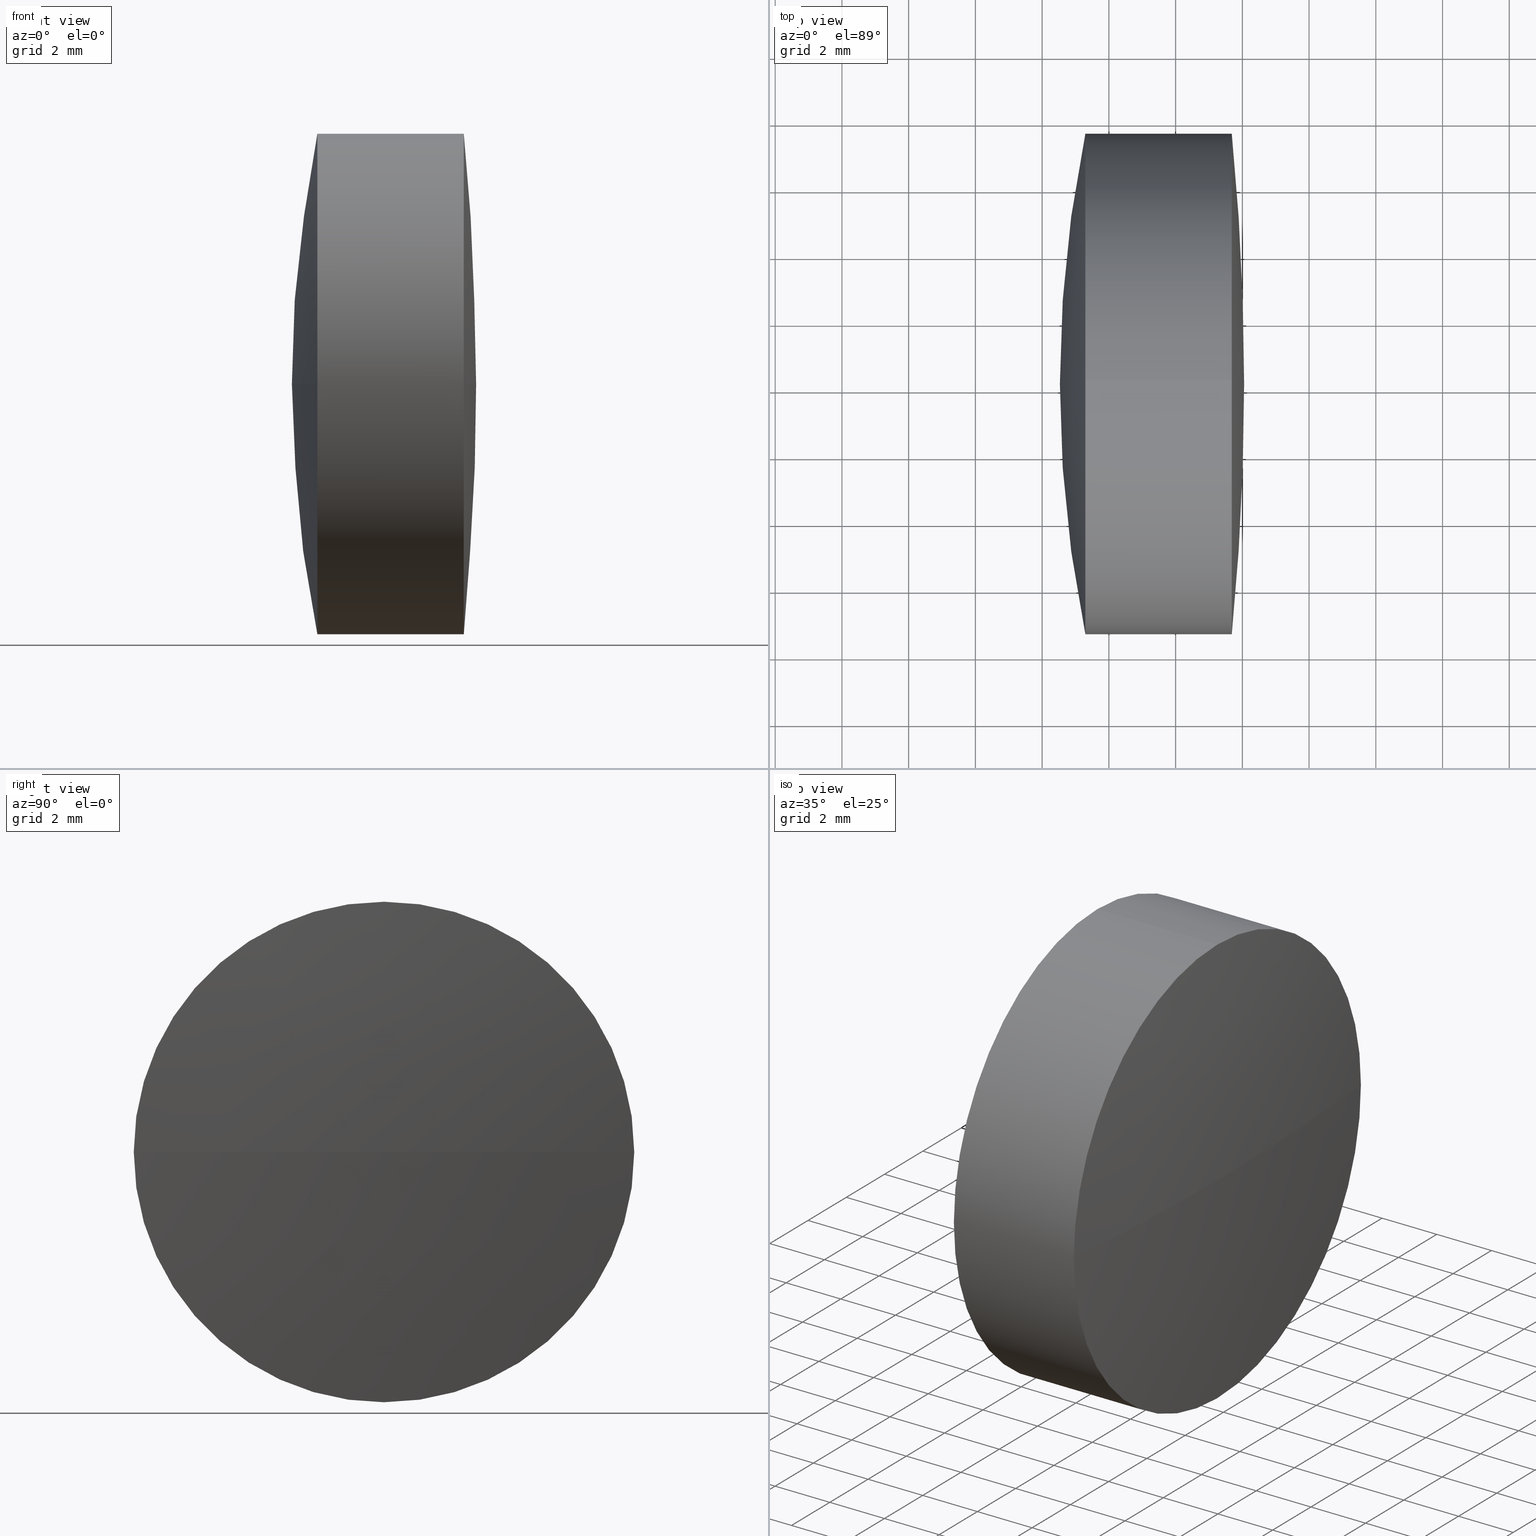
[diagram: canonical four-view strip — front | top / right | iso, engineering-drawing reading convention]
A machine part, canonical four-view strip (front | top / right | iso — engineering-drawing reading convention). The complete STEP part file that produces these views, byte-faithful:
ISO-10303-21;
HEADER;
FILE_DESCRIPTION (( 'STEP AP203' ),
    '1' );
FILE_NAME ('145287.STEP',
    '2024-05-13T02:11:52',
    ( '' ),
    ( '' ),
    'SwSTEP 2.0',
    'SolidWorks 2020',
    '' );
FILE_SCHEMA (( 'CONFIG_CONTROL_DESIGN' ));
ENDSEC;

DATA;
#1 = ORIENTED_EDGE ( 'NONE', *, *, #69, .T. ) ;
#2 = ADVANCED_FACE ( 'NONE', ( #95 ), #256, .T. ) ;
#3 = DIRECTION ( 'NONE',  ( 0.000000000000000000, 0.000000000000000000, 1.000000000000000000 ) ) ;
#4 = APPLICATION_CONTEXT ( 'configuration controlled 3d designs of mechanical parts and assemblies' ) ;
#5 = CIRCLE ( 'NONE', #161, 7.500000000000000000 ) ;
#6 = CARTESIAN_POINT ( 'NONE',  ( -88.70484587419444722, 10.13402828794794708, 0.000000000000000000 ) ) ;
#7 = ORIENTED_EDGE ( 'NONE', *, *, #255, .F. ) ;
#8 = CARTESIAN_POINT ( 'NONE',  ( -112.6581089760292969, 10.13402828794794708, 0.000000000000000000 ) ) ;
#9 = EDGE_LOOP ( 'NONE', ( #30, #177, #407, #374, #324, #420 ) ) ;
#10 = CARTESIAN_POINT ( 'NONE',  ( -88.70484587419444722, 2.634028287947922653, -9.184850993605179499E-16 ) ) ;
#11 = ORIENTED_EDGE ( 'NONE', *, *, #293, .T. ) ;
#12 = FACE_OUTER_BOUND ( 'NONE', #9, .T. ) ;
#13 = CARTESIAN_POINT ( 'NONE',  ( -87.04354085552412812, 17.63402828794796307, 0.000000000000000000 ) ) ;
#14 = MANIFOLD_SOLID_BREP ( '145287b-1-solid1', #347 ) ;
#15 = SPHERICAL_SURFACE ( 'NONE', #78, 76.35999999999999943 ) ;
#16 = MANIFOLD_SOLID_BREP ( '145287a-1-solid1', #167 ) ;
#17 = SPHERICAL_SURFACE ( 'NONE', #340, 76.35999999999999943 ) ;
#18 = DIRECTION ( 'NONE',  ( -1.000000000000000000, -0.000000000000000000, -0.000000000000000000 ) ) ;
#19 = DIRECTION ( 'NONE',  ( 0.000000000000000000, 1.000000000000000000, 0.000000000000000000 ) ) ;
#20 = CC_DESIGN_PERSON_AND_ORGANIZATION_ASSIGNMENT ( #193, #437, ( #379 ) ) ;
#21 = CARTESIAN_POINT ( 'NONE',  ( -88.70484587419444722, 10.13402828794794708, 7.500000000000000000 ) ) ;
#22 = APPROVAL_STATUS ( 'not_yet_approved' ) ;
#23 = SPHERICAL_SURFACE ( 'NONE', #137, 26.69000000000000128 ) ;
#24 =( NAMED_UNIT ( * ) SI_UNIT ( $, .STERADIAN. ) SOLID_ANGLE_UNIT ( ) );
#25 = CIRCLE ( 'NONE', #194, 7.500000000000000000 ) ;
#26 = PERSON_AND_ORGANIZATION ( #294, #237 ) ;
#27 = ADVANCED_FACE ( 'NONE', ( #370 ), #17, .T. ) ;
#28 = PERSON_AND_ORGANIZATION_ROLE ( 'classification_officer' ) ;
#29 = PERSON_AND_ORGANIZATION ( #294, #237 ) ;
#30 = ORIENTED_EDGE ( 'NONE', *, *, #339, .F. ) ;
#31 = AXIS2_PLACEMENT_3D ( 'NONE', #70, #211, #277 ) ;
#32 = CARTESIAN_POINT ( 'NONE',  ( -88.70484587419444722, 10.13402828794794708, 0.000000000000000000 ) ) ;
#33 = EDGE_CURVE ( 'NONE', #348, #56, #321, .T. ) ;
#34 = SPHERICAL_SURFACE ( 'NONE', #290, 37.22999999999999687 ) ;
#35 = AXIS2_PLACEMENT_3D ( 'NONE', #83, #42, #108 ) ;
#36 = DIRECTION ( 'NONE',  ( 0.000000000000000000, 1.000000000000000000, 0.000000000000000000 ) ) ;
#37 = EDGE_CURVE ( 'NONE', #44, #60, #206, .T. ) ;
#38 = ORIENTED_EDGE ( 'NONE', *, *, #400, .F. ) ;
#39 = FACE_OUTER_BOUND ( 'NONE', #443, .T. ) ;
#40 = VERTEX_POINT ( 'NONE', #10 ) ;
#41 = CIRCLE ( 'NONE', #297, 26.19000000000000483 ) ;
#42 = DIRECTION ( 'NONE',  ( -0.000000000000000000, 0.000000000000000000, 1.000000000000000000 ) ) ;
#43 = CARTESIAN_POINT ( 'NONE',  ( -112.6581089760292969, 10.13402828794794708, 0.000000000000000000 ) ) ;
#44 = VERTEX_POINT ( 'NONE', #251 ) ;
#45 = CARTESIAN_POINT ( 'NONE',  ( -84.31590303918355289, 10.13402828794794708, 7.500000000000000000 ) ) ;
#46 = SPHERICAL_SURFACE ( 'NONE', #63, 26.19000000000000483 ) ;
#47 = EDGE_CURVE ( 'NONE', #308, #301, #434, .T. ) ;
#48 = DIRECTION ( 'NONE',  ( 0.000000000000000000, 0.000000000000000000, -1.000000000000000000 ) ) ;
#49 = CIRCLE ( 'NONE', #228, 7.500000000000000000 ) ;
#50 = CARTESIAN_POINT ( 'NONE',  ( -87.04354085552412812, 10.13402828794794708, 0.000000000000000000 ) ) ;
#51 = DIRECTION ( 'NONE',  ( 1.000000000000000000, 0.000000000000000000, 0.000000000000000000 ) ) ;
#52 = EDGE_CURVE ( 'NONE', #352, #197, #414, .T. ) ;
#53 = DATE_AND_TIME ( #396, #192 ) ;
#54 = AXIS2_PLACEMENT_3D ( 'NONE', #125, #330, #159 ) ;
#55 = CALENDAR_DATE ( 2024, 13, 5 ) ;
#56 = VERTEX_POINT ( 'NONE', #13 ) ;
#57 = CC_DESIGN_DATE_AND_TIME_ASSIGNMENT ( #53, #199, ( #239 ) ) ;
#58 = APPLICATION_PROTOCOL_DEFINITION ( 'international standard', 'config_control_design', 1994, #74 ) ;
#59 = APPROVAL_PERSON_ORGANIZATION ( #89, #92, #398 ) ;
#60 = VERTEX_POINT ( 'NONE', #391 ) ;
#61 = PERSON_AND_ORGANIZATION_ROLE ( 'creator' ) ;
#62 = CYLINDRICAL_SURFACE ( 'NONE', #127, 7.500000000000000000 ) ;
#63 = AXIS2_PLACEMENT_3D ( 'NONE', #358, #48, #429 ) ;
#64 = EDGE_CURVE ( 'NONE', #308, #337, #399, .T. ) ;
#65 = ORIENTED_EDGE ( 'NONE', *, *, #436, .T. ) ;
#66 = LINE ( 'NONE', #341, #209 ) ;
#67 = CARTESIAN_POINT ( 'NONE',  ( -112.6581089760292969, 10.13402828794794708, 0.000000000000000000 ) ) ;
#68 = DIRECTION ( 'NONE',  ( -1.000000000000000000, -0.000000000000000000, -0.000000000000000000 ) ) ;
#69 = EDGE_CURVE ( 'NONE', #342, #56, #101, .T. ) ;
#70 = CARTESIAN_POINT ( 'NONE',  ( -87.04354085552412812, 10.13402828794794708, 0.000000000000000000 ) ) ;
#71 = ORIENTED_EDGE ( 'NONE', *, *, #293, .F. ) ;
#72 = CC_DESIGN_PERSON_AND_ORGANIZATION_ASSIGNMENT ( #338, #61, ( #254 ) ) ;
#73 = DIRECTION ( 'NONE',  ( -1.000000000000000000, -0.000000000000000000, -0.000000000000000000 ) ) ;
#74 = APPLICATION_CONTEXT ( 'configuration controlled 3d designs of mechanical parts and assemblies' ) ;
#75 = CC_DESIGN_APPROVAL ( #92, ( #254 ) ) ;
#76 = DIRECTION ( 'NONE',  ( 0.000000000000000000, 0.000000000000000000, 1.000000000000000000 ) ) ;
#77 = VERTEX_POINT ( 'NONE', #416 ) ;
#78 = AXIS2_PLACEMENT_3D ( 'NONE', #325, #395, #332 ) ;
#79 = SECURITY_CLASSIFICATION ( '', '', #129 ) ;
#80 = CARTESIAN_POINT ( 'NONE',  ( -87.04354085552412812, 10.13402828794794708, 0.000000000000000000 ) ) ;
#81 = CARTESIAN_POINT ( 'NONE',  ( -89.46810897602928492, 10.13402828794794708, 0.000000000000000000 ) ) ;
#82 = EDGE_CURVE ( 'NONE', #342, #113, #240, .T. ) ;
#83 = CARTESIAN_POINT ( 'NONE',  ( -52.23810897602929515, 10.13402828794794708, 0.000000000000000000 ) ) ;
#84 = CARTESIAN_POINT ( 'NONE',  ( -112.1366893227850738, 10.13402828794794708, 0.000000000000000000 ) ) ;
#85 = UNCERTAINTY_MEASURE_WITH_UNIT (LENGTH_MEASURE( 1.000000000000000082E-05 ), #176, 'distance_accuracy_value', 'NONE');
#86 = AXIS2_PLACEMENT_3D ( 'NONE', #186, #253, #326 ) ;
#87 = DIRECTION ( 'NONE',  ( -1.000000000000000000, -0.000000000000000000, -0.000000000000000000 ) ) ;
#88 = CC_DESIGN_PERSON_AND_ORGANIZATION_ASSIGNMENT ( #26, #28, ( #79 ) ) ;
#89 = PERSON_AND_ORGANIZATION ( #294, #237 ) ;
#90 = PERSON_AND_ORGANIZATION ( #294, #237 ) ;
#91 = AXIS2_PLACEMENT_3D ( 'NONE', #182, #149, #188 ) ;
#92 = APPROVAL ( #225, 'δָ��' ) ;
#93 = APPROVAL_ROLE ( '' ) ;
#94 = CIRCLE ( 'NONE', #421, 26.19000000000000483 ) ;
#95 = FACE_OUTER_BOUND ( 'NONE', #402, .T. ) ;
#96 = ORIENTED_EDGE ( 'NONE', *, *, #382, .F. ) ;
#97 = DIRECTION ( 'NONE',  ( 0.000000000000000000, 0.000000000000000000, 1.000000000000000000 ) ) ;
#98 = EDGE_CURVE ( 'NONE', #197, #207, #232, .T. ) ;
#99 = DIRECTION ( 'NONE',  ( 0.000000000000000000, 0.000000000000000000, 1.000000000000000000 ) ) ;
#100 = CARTESIAN_POINT ( 'NONE',  ( -87.04354085552412812, 10.13402828794794708, 0.000000000000000000 ) ) ;
#101 = CIRCLE ( 'NONE', #31, 7.500000000000000000 ) ;
#102 = EDGE_LOOP ( 'NONE', ( #276, #65, #288, #111 ) ) ;
#103 = DIRECTION ( 'NONE',  ( 0.000000000000000000, 0.000000000000000000, 1.000000000000000000 ) ) ;
#104 = AXIS2_PLACEMENT_3D ( 'NONE', #178, #319, #3 ) ;
#105 = ORIENTED_EDGE ( 'NONE', *, *, #106, .T. ) ;
#106 = EDGE_CURVE ( 'NONE', #40, #113, #154, .T. ) ;
#107 = DIRECTION ( 'NONE',  ( -0.000000000000000000, 0.000000000000000000, 1.000000000000000000 ) ) ;
#108 = DIRECTION ( 'NONE',  ( 1.000000000000000000, 0.000000000000000000, 0.000000000000000000 ) ) ;
#109 = ORIENTED_EDGE ( 'NONE', *, *, #180, .F. ) ;
#110 = CARTESIAN_POINT ( 'NONE',  ( -89.46810897602928492, 10.13402828794794708, 7.500000000000000000 ) ) ;
#111 = ORIENTED_EDGE ( 'NONE', *, *, #304, .T. ) ;
#112 = EDGE_CURVE ( 'NONE', #131, #352, #258, .T. ) ;
#113 = VERTEX_POINT ( 'NONE', #21 ) ;
#114 = EDGE_LOOP ( 'NONE', ( #216, #247, #175, #438, #134, #109 ) ) ;
#115 = DIRECTION ( 'NONE',  ( 0.000000000000000000, 1.000000000000000000, 1.224646799147353207E-16 ) ) ;
#116 = AXIS2_PLACEMENT_3D ( 'NONE', #8, #156, #295 ) ;
#117 = VERTEX_POINT ( 'NONE', #329 ) ;
#118 = VERTEX_POINT ( 'NONE', #432 ) ;
#119 = AXIS2_PLACEMENT_3D ( 'NONE', #67, #424, #115 ) ;
#120 = CARTESIAN_POINT ( 'NONE',  ( -87.04354085552412812, 10.13402828794794885, -7.500000000000000000 ) ) ;
#121 = DESIGN_CONTEXT ( 'detailed design', #74, 'design' ) ;
#122 = ADVANCED_FACE ( 'NONE', ( #390 ), #419, .T. ) ;
#123 = DIRECTION ( 'NONE',  ( 0.000000000000000000, 1.224646799147353207E-16, -1.000000000000000000 ) ) ;
#124 = CARTESIAN_POINT ( 'NONE',  ( -88.70484587419444722, 10.13402828794794708, 0.000000000000000000 ) ) ;
#125 = CARTESIAN_POINT ( 'NONE',  ( -52.23810897602929515, 10.13402828794794708, 0.000000000000000000 ) ) ;
#126 = DIRECTION ( 'NONE',  ( -1.000000000000000000, -0.000000000000000000, -0.000000000000000000 ) ) ;
#127 = AXIS2_PLACEMENT_3D ( 'NONE', #305, #373, #140 ) ;
#128 = PERSON_AND_ORGANIZATION ( #294, #237 ) ;
#129 = SECURITY_CLASSIFICATION_LEVEL ( 'unclassified' ) ;
#130 = DATE_AND_TIME ( #195, #213 ) ;
#131 = VERTEX_POINT ( 'NONE', #202 ) ;
#132 = EDGE_CURVE ( 'NONE', #413, #148, #278, .T. ) ;
#133 = APPROVAL_DATE_TIME ( #439, #378 ) ;
#134 = ORIENTED_EDGE ( 'NONE', *, *, #132, .F. ) ;
#135 = CARTESIAN_POINT ( 'NONE',  ( -85.96810897602928492, 10.13402828794794885, 0.000000000000000000 ) ) ;
#136 = ORIENTED_EDGE ( 'NONE', *, *, #304, .F. ) ;
#137 = AXIS2_PLACEMENT_3D ( 'NONE', #248, #427, #387 ) ;
#138 = EDGE_LOOP ( 'NONE', ( #214, #446, #11, #441 ) ) ;
#139 = FACE_OUTER_BOUND ( 'NONE', #320, .T. ) ;
#140 = DIRECTION ( 'NONE',  ( 0.000000000000000000, 0.000000000000000000, 1.000000000000000000 ) ) ;
#141 = APPROVAL_PERSON_ORGANIZATION ( #300, #165, #336 ) ;
#142 = ORIENTED_EDGE ( 'NONE', *, *, #359, .F. ) ;
#143 = CARTESIAN_POINT ( 'NONE',  ( -160.3066893227850755, 10.13402828794794708, 0.000000000000000000 ) ) ;
#144 = VECTOR ( 'NONE', #173, 1000.000000000000000 ) ;
#145 = FACE_OUTER_BOUND ( 'NONE', #267, .T. ) ;
#146 = EDGE_CURVE ( 'NONE', #118, #352, #394, .T. ) ;
#147 = DIRECTION ( 'NONE',  ( -1.000000000000000000, -0.000000000000000000, -0.000000000000000000 ) ) ;
#148 = VERTEX_POINT ( 'NONE', #351 ) ;
#149 = DIRECTION ( 'NONE',  ( -1.000000000000000000, -0.000000000000000000, -0.000000000000000000 ) ) ;
#150 = ORIENTED_EDGE ( 'NONE', *, *, #436, .F. ) ;
#151 = DIRECTION ( 'NONE',  ( -1.000000000000000000, -0.000000000000000000, -0.000000000000000000 ) ) ;
#152 = ADVANCED_FACE ( 'NONE', ( #145 ), #190, .T. ) ;
#153 = FACE_OUTER_BOUND ( 'NONE', #102, .T. ) ;
#154 = CIRCLE ( 'NONE', #425, 7.500000000000000000 ) ;
#155 = DIRECTION ( 'NONE',  ( -1.000000000000000000, -0.000000000000000000, -0.000000000000000000 ) ) ;
#156 = DIRECTION ( 'NONE',  ( -0.000000000000000000, 0.000000000000000000, 1.000000000000000000 ) ) ;
#157 = FACE_OUTER_BOUND ( 'NONE', #309, .T. ) ;
#158 = DIRECTION ( 'NONE',  ( -0.000000000000000000, 0.000000000000000000, -1.000000000000000000 ) ) ;
#159 = DIRECTION ( 'NONE',  ( 0.000000000000000000, 1.000000000000000000, 1.224646799147353207E-16 ) ) ;
#160 = CYLINDRICAL_SURFACE ( 'NONE', #174, 7.500000000000000000 ) ;
#161 = AXIS2_PLACEMENT_3D ( 'NONE', #392, #292, #223 ) ;
#162 = COORDINATED_UNIVERSAL_TIME_OFFSET ( 8, 0, .AHEAD. ) ;
#163 = AXIS2_PLACEMENT_3D ( 'NONE', #263, #97, #51 ) ;
#164 = ORIENTED_EDGE ( 'NONE', *, *, #82, .F. ) ;
#165 = APPROVAL ( #298, 'δָ��' ) ;
#166 = DATE_AND_TIME ( #262, #249 ) ;
#167 = CLOSED_SHELL ( 'NONE', ( #327, #274, #433, #152, #122, #266 ) ) ;
#168 = DIRECTION ( 'NONE',  ( -1.000000000000000000, -0.000000000000000000, -0.000000000000000000 ) ) ;
#169 = ORIENTED_EDGE ( 'NONE', *, *, #371, .F. ) ;
#170 = FACE_OUTER_BOUND ( 'NONE', #138, .T. ) ;
#171 = ORIENTED_EDGE ( 'NONE', *, *, #382, .T. ) ;
#172 = DIRECTION ( 'NONE',  ( -0.000000000000000000, 0.000000000000000000, -1.000000000000000000 ) ) ;
#173 = DIRECTION ( 'NONE',  ( -1.000000000000000000, -0.000000000000000000, -0.000000000000000000 ) ) ;
#174 = AXIS2_PLACEMENT_3D ( 'NONE', #81, #87, #189 ) ;
#175 = ORIENTED_EDGE ( 'NONE', *, *, #52, .T. ) ;
#176 =( LENGTH_UNIT ( ) NAMED_UNIT ( * ) SI_UNIT ( .MILLI., .METRE. ) );
#177 = ORIENTED_EDGE ( 'NONE', *, *, #224, .T. ) ;
#178 = CARTESIAN_POINT ( 'NONE',  ( -84.31590303918355289, 10.13402828794794708, 0.000000000000000000 ) ) ;
#179 = ORIENTED_EDGE ( 'NONE', *, *, #33, .F. ) ;
#180 = EDGE_CURVE ( 'NONE', #60, #413, #5, .T. ) ;
#181 = ORIENTED_EDGE ( 'NONE', *, *, #98, .F. ) ;
#182 = CARTESIAN_POINT ( 'NONE',  ( -85.94668932278507611, 10.13402828794794708, 0.000000000000000000 ) ) ;
#183 = ORIENTED_EDGE ( 'NONE', *, *, #353, .T. ) ;
#184 = ADVANCED_FACE ( 'NONE', ( #153 ), #46, .F. ) ;
#185 = CARTESIAN_POINT ( 'NONE',  ( -84.31590303918355289, 17.63402828794788491, 0.000000000000000000 ) ) ;
#186 = CARTESIAN_POINT ( 'NONE',  ( -84.31590303918355289, 10.13402828794794708, 0.000000000000000000 ) ) ;
#187 = DIRECTION ( 'NONE',  ( 1.000000000000000000, 0.000000000000000000, 0.000000000000000000 ) ) ;
#188 = DIRECTION ( 'NONE',  ( 0.000000000000000000, 0.000000000000000000, 1.000000000000000000 ) ) ;
#189 = DIRECTION ( 'NONE',  ( 0.000000000000000000, 0.000000000000000000, 1.000000000000000000 ) ) ;
#190 = SPHERICAL_SURFACE ( 'NONE', #409, 37.22999999999999687 ) ;
#191 = EDGE_CURVE ( 'NONE', #77, #44, #41, .T. ) ;
#192 = LOCAL_TIME ( 10, 11, 52.00000000000000000, #162 ) ;
#193 = PERSON_AND_ORGANIZATION ( #294, #237 ) ;
#194 = AXIS2_PLACEMENT_3D ( 'NONE', #80, #126, #257 ) ;
#195 = CALENDAR_DATE ( 2024, 13, 5 ) ;
#196 = EDGE_CURVE ( 'NONE', #56, #282, #215, .T. ) ;
#197 = VERTEX_POINT ( 'NONE', #45 ) ;
#198 = LOCAL_TIME ( 10, 11, 52.00000000000000000, #366 ) ;
#199 = DATE_TIME_ROLE ( 'creation_date' ) ;
#200 = DIRECTION ( 'NONE',  ( 0.000000000000000000, 0.000000000000000000, 1.000000000000000000 ) ) ;
#201 = AXIS2_PLACEMENT_3D ( 'NONE', #260, #123, #360 ) ;
#202 = CARTESIAN_POINT ( 'NONE',  ( -84.31590303918355289, 10.13402828794794885, -7.500000000000000000 ) ) ;
#203 = DIRECTION ( 'NONE',  ( 0.000000000000000000, 0.000000000000000000, 1.000000000000000000 ) ) ;
#204 = CARTESIAN_POINT ( 'NONE',  ( -52.23810897602929515, 10.13402828794794708, 0.000000000000000000 ) ) ;
#205 = CARTESIAN_POINT ( 'NONE',  ( -88.70484587419444722, 17.63402828794797017, 0.000000000000000000 ) ) ;
#206 = CIRCLE ( 'NONE', #311, 7.500000000000000000 ) ;
#207 = VERTEX_POINT ( 'NONE', #185 ) ;
#208 = DIRECTION ( 'NONE',  ( -1.000000000000000000, -0.000000000000000000, -0.000000000000000000 ) ) ;
#209 = VECTOR ( 'NONE', #68, 1000.000000000000000 ) ;
#210 = CC_DESIGN_PERSON_AND_ORGANIZATION_ASSIGNMENT ( #128, #369, ( #239 ) ) ;
#211 = DIRECTION ( 'NONE',  ( -1.000000000000000000, -0.000000000000000000, -0.000000000000000000 ) ) ;
#212 = DIRECTION ( 'NONE',  ( -0.000000000000000000, 0.000000000000000000, -1.000000000000000000 ) ) ;
#213 = LOCAL_TIME ( 10, 11, 52.00000000000000000, #401 ) ;
#214 = ORIENTED_EDGE ( 'NONE', *, *, #47, .T. ) ;
#215 = CIRCLE ( 'NONE', #246, 7.500000000000000000 ) ;
#216 = ORIENTED_EDGE ( 'NONE', *, *, #422, .F. ) ;
#217 = CIRCLE ( 'NONE', #316, 76.35999999999999943 ) ;
#218 = CARTESIAN_POINT ( 'NONE',  ( -160.3066893227850755, 10.13402828794794708, 0.000000000000000000 ) ) ;
#219 = CARTESIAN_POINT ( 'NONE',  ( -85.94668932278507611, 10.13402828794794708, 7.500000000000000000 ) ) ;
#220 = ORIENTED_EDGE ( 'NONE', *, *, #353, .F. ) ;
#221 = DIRECTION ( 'NONE',  ( 0.000000000000000000, 0.000000000000000000, 1.000000000000000000 ) ) ;
#222 = ADVANCED_BREP_SHAPE_REPRESENTATION ( '145287', ( #16, #14, #163 ), #397 ) ;
#223 = DIRECTION ( 'NONE',  ( 0.000000000000000000, 0.000000000000000000, 1.000000000000000000 ) ) ;
#224 = EDGE_CURVE ( 'NONE', #282, #117, #25, .T. ) ;
#225 = APPROVAL_STATUS ( 'not_yet_approved' ) ;
#226 = AXIS2_PLACEMENT_3D ( 'NONE', #43, #212, #408 ) ;
#227 = COORDINATED_UNIVERSAL_TIME_OFFSET ( 8, 0, .AHEAD. ) ;
#228 = AXIS2_PLACEMENT_3D ( 'NONE', #32, #275, #203 ) ;
#229 = CALENDAR_DATE ( 2024, 13, 5 ) ;
#230 = ORIENTED_EDGE ( 'NONE', *, *, #196, .T. ) ;
#231 = FACE_OUTER_BOUND ( 'NONE', #114, .T. ) ;
#232 = CIRCLE ( 'NONE', #365, 7.500000000000000000 ) ;
#233 = EDGE_LOOP ( 'NONE', ( #96, #357, #318, #38 ) ) ;
#234 = CIRCLE ( 'NONE', #299, 7.500000000000000000 ) ;
#235 = DIRECTION ( 'NONE',  ( 0.000000000000000000, 0.000000000000000000, -1.000000000000000000 ) ) ;
#236 = CARTESIAN_POINT ( 'NONE',  ( -87.04354085552412812, 10.13402828794794708, 7.500000000000000000 ) ) ;
#237 = ORGANIZATION ( 'δָ��', 'δָ��', '' ) ;
#238 = CARTESIAN_POINT ( 'NONE',  ( -89.46810897602929913, 10.13402828794794885, 0.000000000000000000 ) ) ;
#239 = PRODUCT_DEFINITION ( 'δ֪', '', #254, #121 ) ;
#240 = LINE ( 'NONE', #110, #144 ) ;
#241 = EDGE_LOOP ( 'NONE', ( #142, #367, #411, #220 ) ) ;
#242 = AXIS2_PLACEMENT_3D ( 'NONE', #442, #447, #200 ) ;
#243 = ORIENTED_EDGE ( 'NONE', *, *, #371, .T. ) ;
#244 = PRODUCT_RELATED_PRODUCT_CATEGORY ( 'detail', '', ( #379 ) ) ;
#245 = ORIENTED_EDGE ( 'NONE', *, *, #422, .T. ) ;
#246 = AXIS2_PLACEMENT_3D ( 'NONE', #50, #361, #221 ) ;
#247 = ORIENTED_EDGE ( 'NONE', *, *, #112, .T. ) ;
#248 = CARTESIAN_POINT ( 'NONE',  ( -112.6581089760292969, 10.13402828794794708, 0.000000000000000000 ) ) ;
#249 = LOCAL_TIME ( 10, 11, 52.00000000000000000, #302 ) ;
#250 = CIRCLE ( 'NONE', #119, 26.69000000000000483 ) ;
#251 = CARTESIAN_POINT ( 'NONE',  ( -87.04354085552412812, 17.63402828794793820, 0.000000000000000000 ) ) ;
#252 = LINE ( 'NONE', #219, #269 ) ;
#253 = DIRECTION ( 'NONE',  ( -1.000000000000000000, -0.000000000000000000, -0.000000000000000000 ) ) ;
#254 = PRODUCT_DEFINITION_FORMATION_WITH_SPECIFIED_SOURCE ( '�κ�', '', #379, .NOT_KNOWN. ) ;
#255 = EDGE_CURVE ( 'NONE', #197, #148, #252, .T. ) ;
#256 = CYLINDRICAL_SURFACE ( 'NONE', #91, 7.500000000000000000 ) ;
#257 = DIRECTION ( 'NONE',  ( 0.000000000000000000, 0.000000000000000000, 1.000000000000000000 ) ) ;
#258 = CIRCLE ( 'NONE', #354, 7.500000000000000000 ) ;
#259 = MECHANICAL_CONTEXT ( 'NONE', #4, 'mechanical' ) ;
#260 = CARTESIAN_POINT ( 'NONE',  ( -160.3066893227850755, 10.13402828794794708, 0.000000000000000000 ) ) ;
#261 = ADVANCED_FACE ( 'NONE', ( #389 ), #15, .T. ) ;
#262 = CALENDAR_DATE ( 2024, 13, 5 ) ;
#263 = CARTESIAN_POINT ( 'NONE',  ( 0.000000000000000000, 0.000000000000000000, 0.000000000000000000 ) ) ;
#264 = SHAPE_DEFINITION_REPRESENTATION ( #281, #222 ) ;
#265 = DIRECTION ( 'NONE',  ( -1.000000000000000000, -0.000000000000000000, -0.000000000000000000 ) ) ;
#266 = ADVANCED_FACE ( 'NONE', ( #12 ), #160, .T. ) ;
#267 = EDGE_LOOP ( 'NONE', ( #71, #105, #243, #284 ) ) ;
#268 = CARTESIAN_POINT ( 'NONE',  ( -88.70484587419444722, 10.13402828794794885, -7.500000000000000000 ) ) ;
#269 = VECTOR ( 'NONE', #363, 1000.000000000000000 ) ;
#270 = ORIENTED_EDGE ( 'NONE', *, *, #359, .T. ) ;
#271 = LOCAL_TIME ( 10, 11, 52.00000000000000000, #227 ) ;
#272 = CARTESIAN_POINT ( 'NONE',  ( -112.1366893227850738, 10.13402828794794708, 0.000000000000000000 ) ) ;
#273 = ORIENTED_EDGE ( 'NONE', *, *, #37, .T. ) ;
#274 = ADVANCED_FACE ( 'NONE', ( #157 ), #23, .T. ) ;
#275 = DIRECTION ( 'NONE',  ( -1.000000000000000000, -0.000000000000000000, -0.000000000000000000 ) ) ;
#276 = ORIENTED_EDGE ( 'NONE', *, *, #191, .F. ) ;
#277 = DIRECTION ( 'NONE',  ( 0.000000000000000000, 0.000000000000000000, 1.000000000000000000 ) ) ;
#278 = CIRCLE ( 'NONE', #287, 7.500000000000000000 ) ;
#279 = CC_DESIGN_PERSON_AND_ORGANIZATION_ASSIGNMENT ( #29, #364, ( #254 ) ) ;
#280 = ORIENTED_EDGE ( 'NONE', *, *, #146, .F. ) ;
#281 = PRODUCT_DEFINITION_SHAPE ( 'NONE', 'NONE',  #239 ) ;
#282 = VERTEX_POINT ( 'NONE', #120 ) ;
#283 = DIRECTION ( 'NONE',  ( 0.000000000000000000, 1.000000000000000000, 0.000000000000000000 ) ) ;
#284 = ORIENTED_EDGE ( 'NONE', *, *, #64, .T. ) ;
#285 = DIRECTION ( 'NONE',  ( 0.000000000000000000, 0.000000000000000000, 1.000000000000000000 ) ) ;
#286 = DIRECTION ( 'NONE',  ( 0.000000000000000000, 0.000000000000000000, 1.000000000000000000 ) ) ;
#287 = AXIS2_PLACEMENT_3D ( 'NONE', #100, #18, #334 ) ;
#288 = ORIENTED_EDGE ( 'NONE', *, *, #132, .T. ) ;
#289 = CC_DESIGN_SECURITY_CLASSIFICATION ( #79, ( #254 ) ) ;
#290 = AXIS2_PLACEMENT_3D ( 'NONE', #204, #172, #36 ) ;
#291 =( NAMED_UNIT ( * ) PLANE_ANGLE_UNIT ( ) SI_UNIT ( $, .RADIAN. ) );
#292 = DIRECTION ( 'NONE',  ( -1.000000000000000000, -0.000000000000000000, -0.000000000000000000 ) ) ;
#293 = EDGE_CURVE ( 'NONE', #40, #337, #386, .T. ) ;
#294 = PERSON ( 'δָ��', 'δָ��', 'δָ��', ('δָ��'), ('δָ��'), ('δָ��') ) ;
#295 = DIRECTION ( 'NONE',  ( 1.000000000000000000, 0.000000000000000000, 0.000000000000000000 ) ) ;
#296 = DIRECTION ( 'NONE',  ( -0.000000000000000000, 0.000000000000000000, -1.000000000000000000 ) ) ;
#297 = AXIS2_PLACEMENT_3D ( 'NONE', #84, #328, #187 ) ;
#298 = APPROVAL_STATUS ( 'not_yet_approved' ) ;
#299 = AXIS2_PLACEMENT_3D ( 'NONE', #310, #265, #285 ) ;
#300 = PERSON_AND_ORGANIZATION ( #294, #237 ) ;
#301 = VERTEX_POINT ( 'NONE', #268 ) ;
#302 = COORDINATED_UNIVERSAL_TIME_OFFSET ( 8, 0, .AHEAD. ) ;
#303 = VECTOR ( 'NONE', #412, 1000.000000000000000 ) ;
#304 = EDGE_CURVE ( 'NONE', #148, #44, #403, .T. ) ;
#305 = CARTESIAN_POINT ( 'NONE',  ( -85.94668932278507611, 10.13402828794794708, 0.000000000000000000 ) ) ;
#306 = ORIENTED_EDGE ( 'NONE', *, *, #196, .F. ) ;
#307 = CARTESIAN_POINT ( 'NONE',  ( -85.94668932278507611, 10.13402828794794885, -7.500000000000000000 ) ) ;
#308 = VERTEX_POINT ( 'NONE', #205 ) ;
#309 = EDGE_LOOP ( 'NONE', ( #179, #171, #380, #306 ) ) ;
#310 = CARTESIAN_POINT ( 'NONE',  ( -88.70484587419444722, 10.13402828794794708, 0.000000000000000000 ) ) ;
#311 = AXIS2_PLACEMENT_3D ( 'NONE', #388, #356, #430 ) ;
#312 = CARTESIAN_POINT ( 'NONE',  ( -84.31590303918355289, 10.13402828794794708, 0.000000000000000000 ) ) ;
#313 = ADVANCED_FACE ( 'NONE', ( #231 ), #62, .T. ) ;
#314 = ORIENTED_EDGE ( 'NONE', *, *, #98, .T. ) ;
#315 = CC_DESIGN_APPROVAL ( #378, ( #79 ) ) ;
#316 = AXIS2_PLACEMENT_3D ( 'NONE', #143, #107, #410 ) ;
#317 = CARTESIAN_POINT ( 'NONE',  ( -87.04354085552412812, 10.13402828794794708, 0.000000000000000000 ) ) ;
#318 = ORIENTED_EDGE ( 'NONE', *, *, #69, .F. ) ;
#319 = DIRECTION ( 'NONE',  ( -1.000000000000000000, -0.000000000000000000, -0.000000000000000000 ) ) ;
#320 = EDGE_LOOP ( 'NONE', ( #230, #385, #323, #169, #164, #1 ) ) ;
#321 = CIRCLE ( 'NONE', #116, 26.69000000000000483 ) ;
#322 = ORIENTED_EDGE ( 'NONE', *, *, #180, .T. ) ;
#323 = ORIENTED_EDGE ( 'NONE', *, *, #47, .F. ) ;
#324 = ORIENTED_EDGE ( 'NONE', *, *, #106, .F. ) ;
#325 = CARTESIAN_POINT ( 'NONE',  ( -160.3066893227850755, 10.13402828794794708, 0.000000000000000000 ) ) ;
#326 = DIRECTION ( 'NONE',  ( 0.000000000000000000, 0.000000000000000000, 1.000000000000000000 ) ) ;
#327 = ADVANCED_FACE ( 'NONE', ( #139 ), #346, .T. ) ;
#328 = DIRECTION ( 'NONE',  ( 0.000000000000000000, 0.000000000000000000, 1.000000000000000000 ) ) ;
#329 = CARTESIAN_POINT ( 'NONE',  ( -87.04354085552412812, 2.634028287947929314, -9.184850993605171610E-16 ) ) ;
#330 = DIRECTION ( 'NONE',  ( 0.000000000000000000, 1.224646799147353207E-16, -1.000000000000000000 ) ) ;
#331 = DIRECTION ( 'NONE',  ( 0.000000000000000000, 0.000000000000000000, 1.000000000000000000 ) ) ;
#332 = DIRECTION ( 'NONE',  ( 0.000000000000000000, 1.000000000000000000, 0.000000000000000000 ) ) ;
#333 = APPLICATION_PROTOCOL_DEFINITION ( 'international standard', 'config_control_design', 1994, #4 ) ;
#334 = DIRECTION ( 'NONE',  ( 0.000000000000000000, 0.000000000000000000, 1.000000000000000000 ) ) ;
#335 = APPROVAL_DATE_TIME ( #130, #92 ) ;
#336 = APPROVAL_ROLE ( '' ) ;
#337 = VERTEX_POINT ( 'NONE', #238 ) ;
#338 = PERSON_AND_ORGANIZATION ( #294, #237 ) ;
#339 = EDGE_CURVE ( 'NONE', #282, #301, #66, .T. ) ;
#340 = AXIS2_PLACEMENT_3D ( 'NONE', #218, #158, #283 ) ;
#341 = CARTESIAN_POINT ( 'NONE',  ( -89.46810897602928492, 10.13402828794794885, -7.500000000000000000 ) ) ;
#342 = VERTEX_POINT ( 'NONE', #236 ) ;
#343 = LINE ( 'NONE', #307, #303 ) ;
#344 = CARTESIAN_POINT ( 'NONE',  ( -84.31590303918355289, 2.634028287948008806, -9.184850993605071031E-16 ) ) ;
#345 = ADVANCED_FACE ( 'NONE', ( #39 ), #350, .F. ) ;
#346 = CYLINDRICAL_SURFACE ( 'NONE', #242, 7.500000000000000000 ) ;
#347 = CLOSED_SHELL ( 'NONE', ( #2, #27, #184, #345, #261, #313 ) ) ;
#348 = VERTEX_POINT ( 'NONE', #135 ) ;
#349 = APPROVAL_PERSON_ORGANIZATION ( #90, #378, #93 ) ;
#350 = SPHERICAL_SURFACE ( 'NONE', #355, 26.19000000000000483 ) ;
#351 = CARTESIAN_POINT ( 'NONE',  ( -87.04354085552412812, 10.13402828794794708, 7.500000000000000000 ) ) ;
#352 = VERTEX_POINT ( 'NONE', #344 ) ;
#353 = EDGE_CURVE ( 'NONE', #207, #131, #445, .T. ) ;
#354 = AXIS2_PLACEMENT_3D ( 'NONE', #312, #155, #331 ) ;
#355 = AXIS2_PLACEMENT_3D ( 'NONE', #272, #235, #440 ) ;
#356 = DIRECTION ( 'NONE',  ( -1.000000000000000000, -0.000000000000000000, -0.000000000000000000 ) ) ;
#357 = ORIENTED_EDGE ( 'NONE', *, *, #33, .T. ) ;
#358 = CARTESIAN_POINT ( 'NONE',  ( -112.1366893227850738, 10.13402828794794708, 0.000000000000000000 ) ) ;
#359 = EDGE_CURVE ( 'NONE', #118, #207, #217, .T. ) ;
#360 = DIRECTION ( 'NONE',  ( 0.000000000000000000, 1.000000000000000000, 1.224646799147353207E-16 ) ) ;
#361 = DIRECTION ( 'NONE',  ( -1.000000000000000000, -0.000000000000000000, -0.000000000000000000 ) ) ;
#362 = AXIS2_PLACEMENT_3D ( 'NONE', #317, #168, #103 ) ;
#363 = DIRECTION ( 'NONE',  ( -1.000000000000000000, -0.000000000000000000, -0.000000000000000000 ) ) ;
#364 = PERSON_AND_ORGANIZATION_ROLE ( 'design_supplier' ) ;
#365 = AXIS2_PLACEMENT_3D ( 'NONE', #383, #73, #418 ) ;
#366 = COORDINATED_UNIVERSAL_TIME_OFFSET ( 8, 0, .AHEAD. ) ;
#367 = ORIENTED_EDGE ( 'NONE', *, *, #146, .T. ) ;
#368 = CIRCLE ( 'NONE', #428, 7.500000000000000000 ) ;
#369 = PERSON_AND_ORGANIZATION_ROLE ( 'creator' ) ;
#370 = FACE_OUTER_BOUND ( 'NONE', #241, .T. ) ;
#371 = EDGE_CURVE ( 'NONE', #113, #308, #234, .T. ) ;
#372 = APPROVAL_DATE_TIME ( #435, #165 ) ;
#373 = DIRECTION ( 'NONE',  ( -1.000000000000000000, -0.000000000000000000, -0.000000000000000000 ) ) ;
#374 = ORIENTED_EDGE ( 'NONE', *, *, #82, .T. ) ;
#375 = AXIS2_PLACEMENT_3D ( 'NONE', #124, #151, #286 ) ;
#376 = CARTESIAN_POINT ( 'NONE',  ( -87.04354085552412812, 2.634028287947954183, -9.184850993605140056E-16 ) ) ;
#377 = CARTESIAN_POINT ( 'NONE',  ( -112.1366893227850738, 10.13402828794794708, 0.000000000000000000 ) ) ;
#378 = APPROVAL ( #22, 'δָ��' ) ;
#379 = PRODUCT ( '145287', '145287', '', ( #259 ) ) ;
#380 = ORIENTED_EDGE ( 'NONE', *, *, #224, .F. ) ;
#381 = DIRECTION ( 'NONE',  ( 0.000000000000000000, 1.224646799147353207E-16, -1.000000000000000000 ) ) ;
#382 = EDGE_CURVE ( 'NONE', #348, #117, #250, .T. ) ;
#383 = CARTESIAN_POINT ( 'NONE',  ( -84.31590303918355289, 10.13402828794794708, 0.000000000000000000 ) ) ;
#384 = CC_DESIGN_APPROVAL ( #165, ( #239 ) ) ;
#385 = ORIENTED_EDGE ( 'NONE', *, *, #339, .T. ) ;
#386 = CIRCLE ( 'NONE', #54, 37.22999999999999687 ) ;
#387 = DIRECTION ( 'NONE',  ( 0.000000000000000000, 1.000000000000000000, 0.000000000000000000 ) ) ;
#388 = CARTESIAN_POINT ( 'NONE',  ( -87.04354085552412812, 10.13402828794794708, 0.000000000000000000 ) ) ;
#389 = FACE_OUTER_BOUND ( 'NONE', #426, .T. ) ;
#390 = FACE_OUTER_BOUND ( 'NONE', #233, .T. ) ;
#391 = CARTESIAN_POINT ( 'NONE',  ( -87.04354085552412812, 10.13402828794794885, -7.500000000000000000 ) ) ;
#392 = CARTESIAN_POINT ( 'NONE',  ( -87.04354085552412812, 10.13402828794794708, 0.000000000000000000 ) ) ;
#393 = CC_DESIGN_DATE_AND_TIME_ASSIGNMENT ( #166, #405, ( #79 ) ) ;
#394 = CIRCLE ( 'NONE', #201, 76.35999999999999943 ) ;
#395 = DIRECTION ( 'NONE',  ( -0.000000000000000000, 0.000000000000000000, -1.000000000000000000 ) ) ;
#396 = CALENDAR_DATE ( 2024, 13, 5 ) ;
#397 =( GEOMETRIC_REPRESENTATION_CONTEXT ( 3 ) GLOBAL_UNCERTAINTY_ASSIGNED_CONTEXT ( ( #85 ) ) GLOBAL_UNIT_ASSIGNED_CONTEXT ( ( #176, #291, #24 ) ) REPRESENTATION_CONTEXT ( 'NONE', 'WORKASPACE' ) );
#398 = APPROVAL_ROLE ( '' ) ;
#399 = CIRCLE ( 'NONE', #35, 37.22999999999999687 ) ;
#400 = EDGE_CURVE ( 'NONE', #117, #342, #368, .T. ) ;
#401 = COORDINATED_UNIVERSAL_TIME_OFFSET ( 8, 0, .AHEAD. ) ;
#402 = EDGE_LOOP ( 'NONE', ( #183, #245, #417, #136, #7, #314 ) ) ;
#403 = CIRCLE ( 'NONE', #362, 7.500000000000000000 ) ;
#404 = ORIENTED_EDGE ( 'NONE', *, *, #52, .F. ) ;
#405 = DATE_TIME_ROLE ( 'classification_date' ) ;
#406 = CARTESIAN_POINT ( 'NONE',  ( -87.04354085552412812, 10.13402828794794708, 0.000000000000000000 ) ) ;
#407 = ORIENTED_EDGE ( 'NONE', *, *, #400, .T. ) ;
#408 = DIRECTION ( 'NONE',  ( 0.000000000000000000, 1.000000000000000000, 0.000000000000000000 ) ) ;
#409 = AXIS2_PLACEMENT_3D ( 'NONE', #431, #296, #19 ) ;
#410 = DIRECTION ( 'NONE',  ( 1.000000000000000000, 0.000000000000000000, 0.000000000000000000 ) ) ;
#411 = ORIENTED_EDGE ( 'NONE', *, *, #112, .F. ) ;
#412 = DIRECTION ( 'NONE',  ( -1.000000000000000000, -0.000000000000000000, -0.000000000000000000 ) ) ;
#413 = VERTEX_POINT ( 'NONE', #376 ) ;
#414 = CIRCLE ( 'NONE', #86, 7.500000000000000000 ) ;
#415 = EDGE_CURVE ( 'NONE', #301, #40, #49, .T. ) ;
#416 = CARTESIAN_POINT ( 'NONE',  ( -85.94668932278507611, 10.13402828794794885, 0.000000000000000000 ) ) ;
#417 = ORIENTED_EDGE ( 'NONE', *, *, #37, .F. ) ;
#418 = DIRECTION ( 'NONE',  ( 0.000000000000000000, 0.000000000000000000, 1.000000000000000000 ) ) ;
#419 = SPHERICAL_SURFACE ( 'NONE', #226, 26.69000000000000128 ) ;
#420 = ORIENTED_EDGE ( 'NONE', *, *, #415, .F. ) ;
#421 = AXIS2_PLACEMENT_3D ( 'NONE', #377, #381, #444 ) ;
#422 = EDGE_CURVE ( 'NONE', #131, #60, #343, .T. ) ;
#423 = ORIENTED_EDGE ( 'NONE', *, *, #191, .T. ) ;
#424 = DIRECTION ( 'NONE',  ( 0.000000000000000000, 1.224646799147353207E-16, -1.000000000000000000 ) ) ;
#425 = AXIS2_PLACEMENT_3D ( 'NONE', #6, #147, #76 ) ;
#426 = EDGE_LOOP ( 'NONE', ( #280, #270, #181, #404 ) ) ;
#427 = DIRECTION ( 'NONE',  ( -0.000000000000000000, 0.000000000000000000, -1.000000000000000000 ) ) ;
#428 = AXIS2_PLACEMENT_3D ( 'NONE', #406, #208, #99 ) ;
#429 = DIRECTION ( 'NONE',  ( 0.000000000000000000, 1.000000000000000000, 0.000000000000000000 ) ) ;
#430 = DIRECTION ( 'NONE',  ( 0.000000000000000000, 0.000000000000000000, 1.000000000000000000 ) ) ;
#431 = CARTESIAN_POINT ( 'NONE',  ( -52.23810897602929515, 10.13402828794794708, 0.000000000000000000 ) ) ;
#432 = CARTESIAN_POINT ( 'NONE',  ( -83.94668932278507611, 10.13402828794795241, 0.000000000000000000 ) ) ;
#433 = ADVANCED_FACE ( 'NONE', ( #170 ), #34, .T. ) ;
#434 = CIRCLE ( 'NONE', #375, 7.500000000000000000 ) ;
#435 = DATE_AND_TIME ( #229, #198 ) ;
#436 = EDGE_CURVE ( 'NONE', #77, #413, #94, .T. ) ;
#437 = PERSON_AND_ORGANIZATION_ROLE ( 'design_owner' ) ;
#438 = ORIENTED_EDGE ( 'NONE', *, *, #255, .T. ) ;
#439 = DATE_AND_TIME ( #55, #271 ) ;
#440 = DIRECTION ( 'NONE',  ( 0.000000000000000000, 1.000000000000000000, 0.000000000000000000 ) ) ;
#441 = ORIENTED_EDGE ( 'NONE', *, *, #64, .F. ) ;
#442 = CARTESIAN_POINT ( 'NONE',  ( -89.46810897602928492, 10.13402828794794708, 0.000000000000000000 ) ) ;
#443 = EDGE_LOOP ( 'NONE', ( #150, #423, #273, #322 ) ) ;
#444 = DIRECTION ( 'NONE',  ( 0.000000000000000000, 1.000000000000000000, 1.224646799147353207E-16 ) ) ;
#445 = CIRCLE ( 'NONE', #104, 7.500000000000000000 ) ;
#446 = ORIENTED_EDGE ( 'NONE', *, *, #415, .T. ) ;
#447 = DIRECTION ( 'NONE',  ( -1.000000000000000000, -0.000000000000000000, -0.000000000000000000 ) ) ;
ENDSEC;
END-ISO-10303-21;
